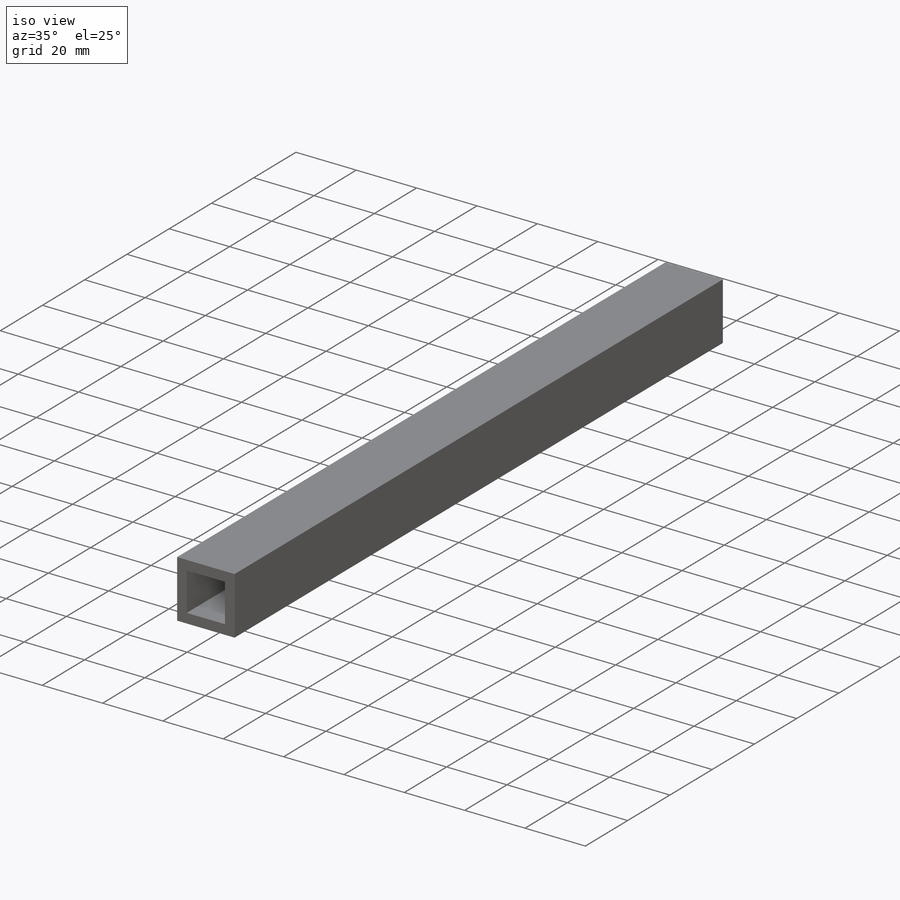
[diagram: iso view]
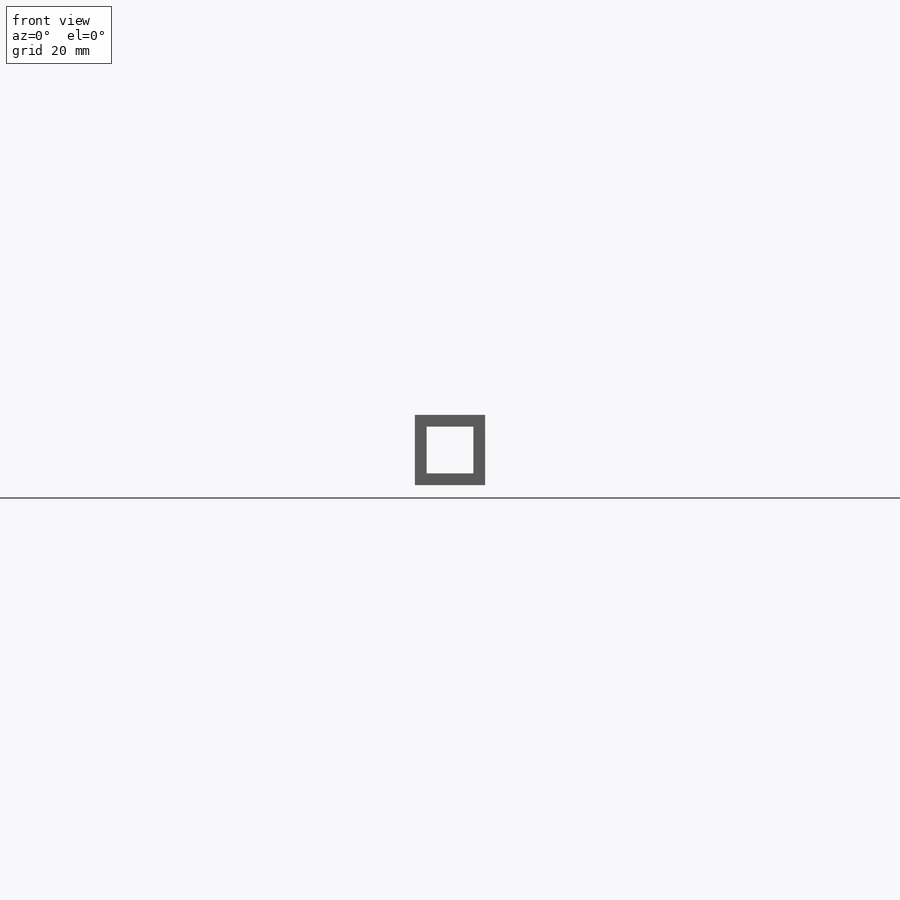
[diagram: front view]
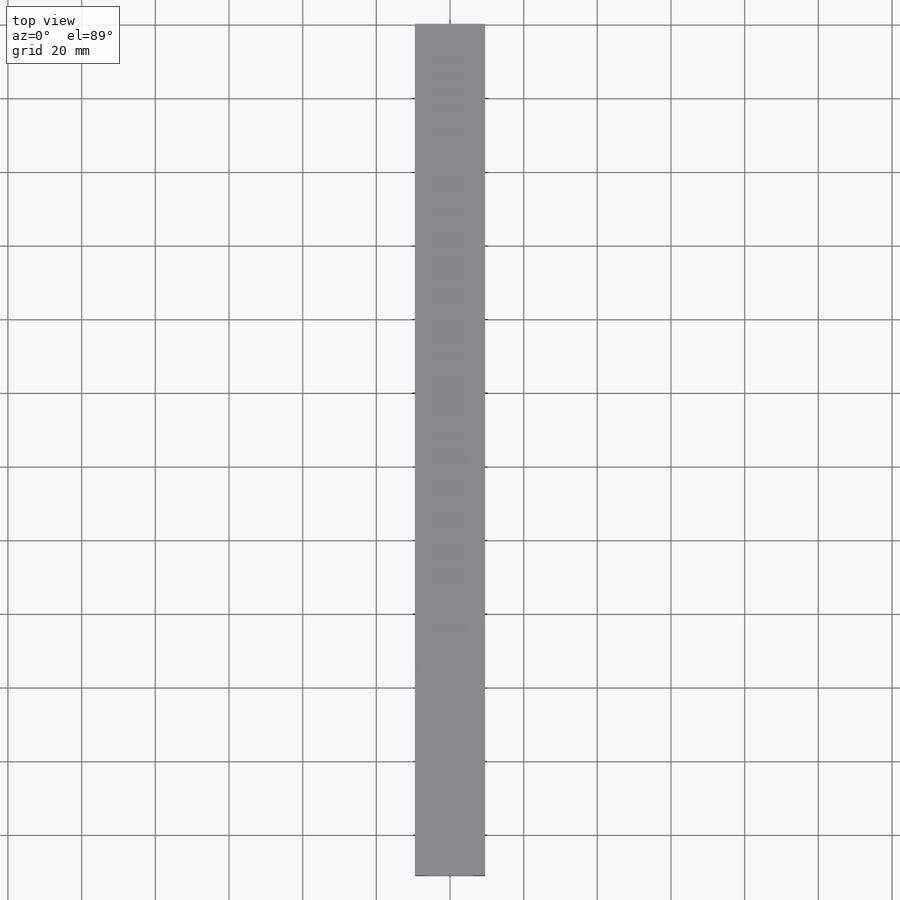
[diagram: top view]
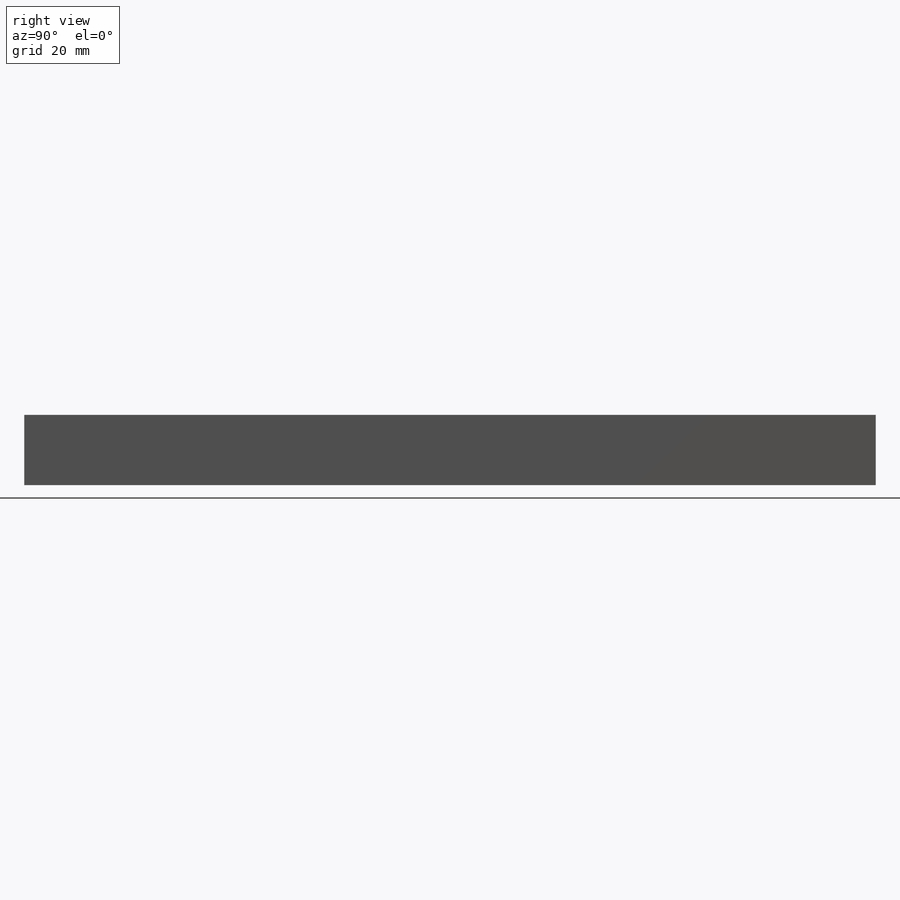
[diagram: right view]
SOLIDWORKS PART (.sldprt)
format: sldprt  version: not decoded by parser v0  size: 638,464 bytes
history: native  units: mm
features: sketch x4, plane x4, fillet x4, cut_extrude x3, material x1, extrude x1 (+13 scaffold rows collapsed)
feature tree (30):
  scaffold x13  (default folders/planes/origin — collapsed)
  material  "5052-H36"
  sketch  "Sketch1"  dims[D1=19.05mm D2=3.175mm]
  extrude  "Boss-Extrude1"  Depth=323.85mm
  sketch  "Sketch2"  dims[c1.D2=114.3mm c1.D3=~40.506565mm c2.D3=30.0deg c2.D1=0.0mm]
  cut_extrude  "Cut-Extrude1"  Depth=55.88mm
  sketch  "Sketch3"  dims[c1.D1=~29.105167mm c2.D1=45.0deg c2.D2=574.675mm c3.D2=45.0deg c3.D3=215.9mm c3.D4=~152.664354mm c4.D3=152.4mm c4.D4=152.4mm]
  cut_extrude  "Cut-Extrude2"  [1 undecoded]
  sketch  "Sketch4"  dims[D1=19.05mm D2=19.05mm]
  cut_extrude  "Cut-Extrude3"  [1 undecoded]
  plane  "Plane1"
  plane  "Plane2"
  plane  "Plane3"
  fillet  "Fillet1"  Radius=2.54mm
  fillet  "Fillet2"  Radius=6.35mm
  fillet  "Fillet3"  Radius=12.7mm
  fillet  "Fillet4"  Radius=12.7mm
  plane  "Plane4"
decode coverage: 10 of 12 modeling features carry decoded parameters
note: ~ marks probable driven/reference dimensions
note: 2 parameter values undecoded
note: suppression state not decoded; provenance and decode notes live in map.json
